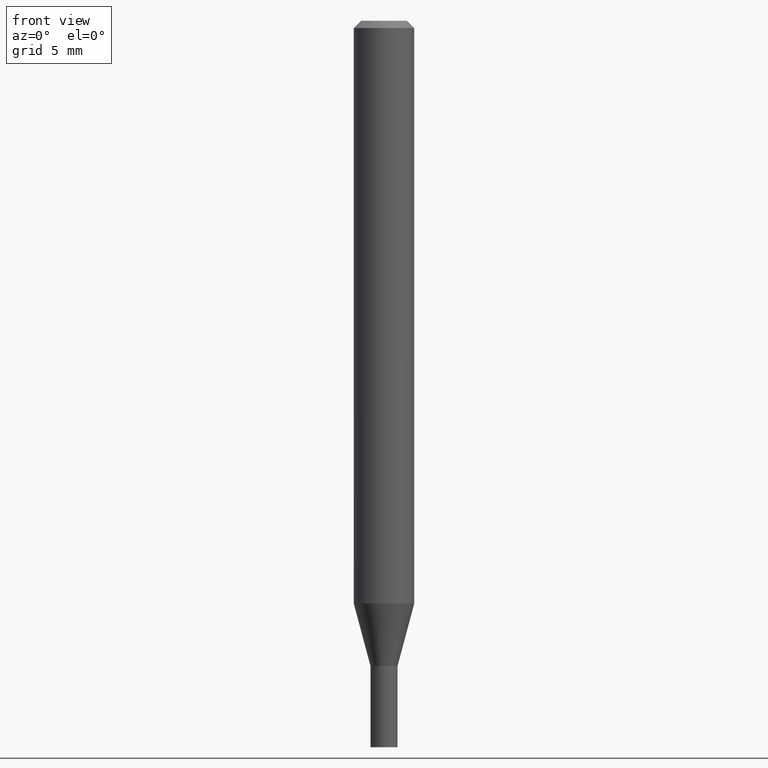
[diagram: clean part render]
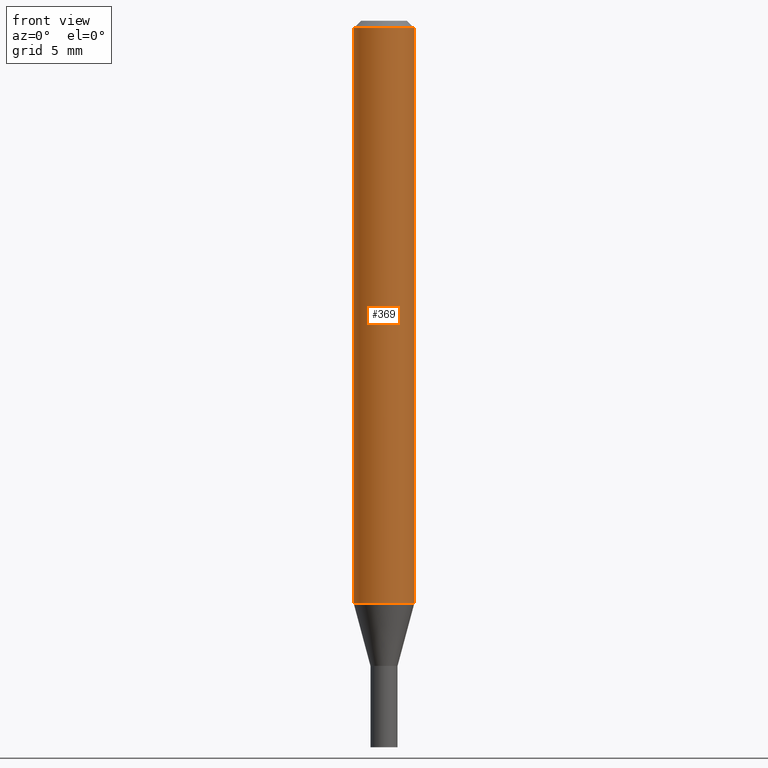
[diagram: same view with one face highlighted and labeled with its STEP entity id]
A machine part, front view. The second image highlights one B-rep face of the part: STEP entity #369.
In plain terms, the highlighted cylindrical surface (edge-blend (fillet) strip) has radius 1.5875 mm, axis along (-0, 0, 1).
Its self-contained STEP definition (entity closure, byte-faithful):
#12 = EDGE_CURVE ( 'NONE', #157, #91, #404, .T. ) ;
#17 = VERTEX_POINT ( 'NONE', #357 ) ;
#54 = FACE_OUTER_BOUND ( 'NONE', #315, .T. ) ;
#58 = DIRECTION ( 'NONE',  ( -2.445468806185136597E-29, 3.491481338843145583E-15, 1.000000000000000000 ) ) ;
#66 = DIRECTION ( 'NONE',  ( -2.445468806185136597E-29, 3.491481338843145583E-15, 1.000000000000000000 ) ) ;
#67 = EDGE_CURVE ( 'NONE', #159, #157, #104, .T. ) ;
#73 = CIRCLE ( 'NONE', #132, 0.06250000000000000000 ) ;
#75 = ORIENTED_EDGE ( 'NONE', *, *, #300, .T. ) ;
#91 = VERTEX_POINT ( 'NONE', #106 ) ;
#94 = CARTESIAN_POINT ( 'NONE',  ( 0.06250000000000000000, -4.364351673553916694E-16, 3.047610484872459871E-30 ) ) ;
#104 = LINE ( 'NONE', #204, #359 ) ;
#106 = CARTESIAN_POINT ( 'NONE',  ( 0.06250000000000000000, -4.888073874380388472E-16, -0.01499999999999999944 ) ) ;
#126 = DIRECTION ( 'NONE',  ( -2.445468806185136877E-29, 3.491481338843145188E-15, 1.000000000000000000 ) ) ;
#132 = AXIS2_PLACEMENT_3D ( 'NONE', #375, #66, #338 ) ;
#141 = DIRECTION ( 'NONE',  ( -2.445468806185136877E-29, 3.491481338843145188E-15, 1.000000000000000000 ) ) ;
#157 = VERTEX_POINT ( 'NONE', #303 ) ;
#159 = VERTEX_POINT ( 'NONE', #238 ) ;
#204 = CARTESIAN_POINT ( 'NONE',  ( -0.06250000000000000000, 4.440892098500626162E-16, -3.074334431409316114E-30 ) ) ;
#230 = CARTESIAN_POINT ( 'NONE',  ( 3.668203209277705088E-31, -5.237222008264718399E-17, -0.01499999999999999944 ) ) ;
#234 = LINE ( 'NONE', #94, #288 ) ;
#238 = CARTESIAN_POINT ( 'NONE',  ( -0.06250000000000000000, -3.757015625105688880E-15, -1.203244247138874901 ) ) ;
#249 = AXIS2_PLACEMENT_3D ( 'NONE', #230, #58, #364 ) ;
#255 = DIRECTION ( 'NONE',  ( 1.000000000000000000, -6.982962677686266711E-15, 4.876176775795935793E-29 ) ) ;
#261 = CARTESIAN_POINT ( 'NONE',  ( 0.000000000000000000, 0.000000000000000000, 0.000000000000000000 ) ) ;
#288 = VECTOR ( 'NONE', #126, 39.37007874015748143 ) ;
#300 = EDGE_CURVE ( 'NONE', #159, #17, #73, .T. ) ;
#303 = CARTESIAN_POINT ( 'NONE',  ( -0.06250000000000000000, -1.682649317669137066E-15, -0.01499999999999999944 ) ) ;
#315 = EDGE_LOOP ( 'NONE', ( #318, #75, #325, #362 ) ) ;
#318 = ORIENTED_EDGE ( 'NONE', *, *, #67, .F. ) ;
#321 = EDGE_CURVE ( 'NONE', #17, #91, #234, .T. ) ;
#325 = ORIENTED_EDGE ( 'NONE', *, *, #321, .T. ) ;
#338 = DIRECTION ( 'NONE',  ( 1.000000000000000000, -6.982962677686270655E-15, 0.000000000000000000 ) ) ;
#357 = CARTESIAN_POINT ( 'NONE',  ( 0.06250000000000000000, -4.637540002311143955E-15, -1.203244247138874901 ) ) ;
#359 = VECTOR ( 'NONE', #141, 39.37007874015748143 ) ;
#362 = ORIENTED_EDGE ( 'NONE', *, *, #12, .F. ) ;
#364 = DIRECTION ( 'NONE',  ( 1.000000000000000000, -6.982962677686266711E-15, 0.000000000000000000 ) ) ;
#369 = ADVANCED_FACE ( 'NONE', ( #54 ), #396, .T. ) ;
#375 = CARTESIAN_POINT ( 'NONE',  ( 2.942496272599838320E-29, -4.201104834955752285E-15, -1.203244247138874901 ) ) ;
#396 = CYLINDRICAL_SURFACE ( 'NONE', #432, 0.06250000000000000000 ) ;
#403 = DIRECTION ( 'NONE',  ( -2.445468806185136597E-29, 3.491481338843145583E-15, 1.000000000000000000 ) ) ;
#404 = CIRCLE ( 'NONE', #249, 0.06250000000000000000 ) ;
#432 = AXIS2_PLACEMENT_3D ( 'NONE', #261, #403, #255 ) ;